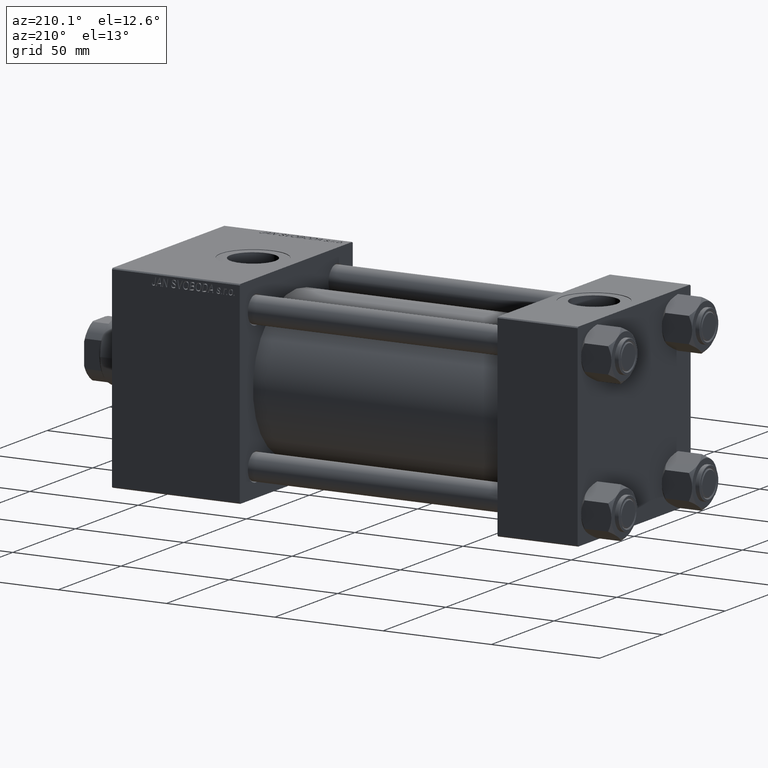
[diagram: clean part render]
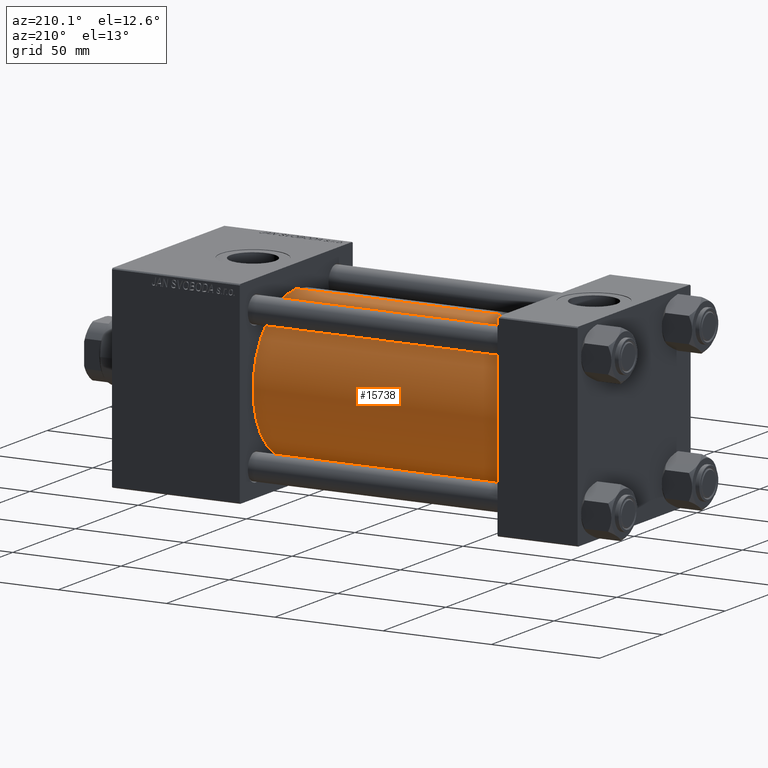
[diagram: same view with one face highlighted and labeled with its STEP entity id]
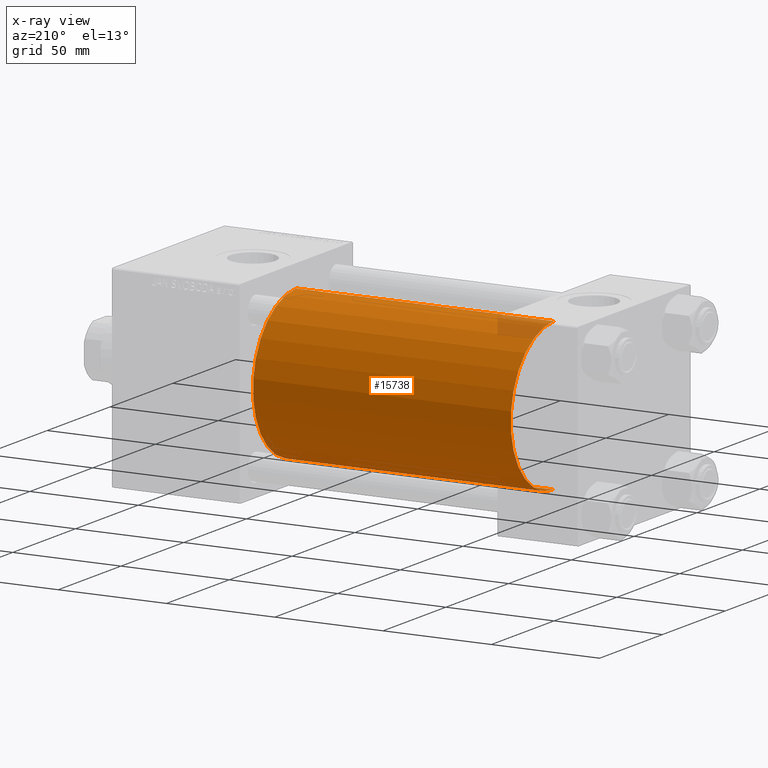
[diagram: x-ray of the same camera — body ghosted, the highlighted face saturated]
A machine part, auxiliary view. The second image highlights one B-rep face of the part: STEP entity #15738.
The next image is the same camera in x-ray: the body ghosted, the highlighted face saturated — about 2% of this face is hidden behind the body in this view.
In plain terms, the highlighted cylindrical surface (partial cylindrical patch) has radius 34.5 mm, axis along (-1, -0, -0).
Its self-contained STEP definition (entity closure, byte-faithful):
#2303 = EDGE_LOOP ( 'NONE', ( #36486, #24062, #43866, #20186 ) ) ;
#5890 = DIRECTION ( 'NONE',  ( 0.000000000000000000, 0.000000000000000000, 1.000000000000000000 ) ) ;
#7321 = CARTESIAN_POINT ( 'NONE',  ( 156.0000000000000000, -2.602085213965210642E-15, 0.000000000000000000 ) ) ;
#7871 = VERTEX_POINT ( 'NONE', #45200 ) ;
#10777 = CIRCLE ( 'NONE', #42499, 34.50000000000000000 ) ;
#13054 = CARTESIAN_POINT ( 'NONE',  ( 156.0000000000000000, -2.602085213965210642E-15, 34.50000000000000000 ) ) ;
#15738 = ADVANCED_FACE ( 'NONE', ( #37436 ), #48449, .T. ) ;
#20186 = ORIENTED_EDGE ( 'NONE', *, *, #27092, .F. ) ;
#20405 = AXIS2_PLACEMENT_3D ( 'NONE', #27048, #22972, #33921 ) ;
#20577 = VECTOR ( 'NONE', #41523, 1000.000000000000000 ) ;
#21975 = CARTESIAN_POINT ( 'NONE',  ( 37.00000000000000711, 1.622946243093158675E-15, -34.50000000000000000 ) ) ;
#22833 = DIRECTION ( 'NONE',  ( 1.000000000000000000, 0.000000000000000000, 0.000000000000000000 ) ) ;
#22972 = DIRECTION ( 'NONE',  ( 1.000000000000000000, -0.000000000000000000, 0.000000000000000000 ) ) ;
#24062 = ORIENTED_EDGE ( 'NONE', *, *, #41487, .T. ) ;
#24370 = VERTEX_POINT ( 'NONE', #24822 ) ;
#24822 = CARTESIAN_POINT ( 'NONE',  ( 37.00000000000000711, -2.602085213965210642E-15, 34.50000000000000000 ) ) ;
#25217 = CARTESIAN_POINT ( 'NONE',  ( 156.0000000000000000, -2.602085213965210642E-15, 0.000000000000000000 ) ) ;
#26057 = CIRCLE ( 'NONE', #20405, 34.50000000000000000 ) ;
#26077 = VECTOR ( 'NONE', #44038, 1000.000000000000000 ) ;
#27048 = CARTESIAN_POINT ( 'NONE',  ( 37.00000000000000711, -2.602085213965210642E-15, 0.000000000000000000 ) ) ;
#27092 = EDGE_CURVE ( 'NONE', #50411, #24370, #28483, .T. ) ;
#28483 = LINE ( 'NONE', #44808, #26077 ) ;
#30250 = EDGE_CURVE ( 'NONE', #7871, #50411, #10777, .T. ) ;
#32755 = VERTEX_POINT ( 'NONE', #21975 ) ;
#32798 = EDGE_CURVE ( 'NONE', #32755, #24370, #26057, .T. ) ;
#33921 = DIRECTION ( 'NONE',  ( 0.000000000000000000, 0.000000000000000000, 1.000000000000000000 ) ) ;
#36486 = ORIENTED_EDGE ( 'NONE', *, *, #30250, .F. ) ;
#37436 = FACE_OUTER_BOUND ( 'NONE', #2303, .T. ) ;
#38439 = LINE ( 'NONE', #42279, #20577 ) ;
#39876 = DIRECTION ( 'NONE',  ( 0.000000000000000000, 0.000000000000000000, -1.000000000000000000 ) ) ;
#40765 = DIRECTION ( 'NONE',  ( -1.000000000000000000, -0.000000000000000000, -0.000000000000000000 ) ) ;
#41487 = EDGE_CURVE ( 'NONE', #7871, #32755, #38439, .T. ) ;
#41523 = DIRECTION ( 'NONE',  ( -1.000000000000000000, -0.000000000000000000, -0.000000000000000000 ) ) ;
#42279 = CARTESIAN_POINT ( 'NONE',  ( 156.0000000000000000, 1.622946243093158675E-15, -34.50000000000000000 ) ) ;
#42499 = AXIS2_PLACEMENT_3D ( 'NONE', #7321, #22833, #39876 ) ;
#43866 = ORIENTED_EDGE ( 'NONE', *, *, #32798, .T. ) ;
#44038 = DIRECTION ( 'NONE',  ( -1.000000000000000000, -0.000000000000000000, -0.000000000000000000 ) ) ;
#44808 = CARTESIAN_POINT ( 'NONE',  ( 156.0000000000000000, -2.602085213965210642E-15, 34.50000000000000000 ) ) ;
#45200 = CARTESIAN_POINT ( 'NONE',  ( 156.0000000000000000, 1.622946243093158675E-15, -34.50000000000000000 ) ) ;
#48449 = CYLINDRICAL_SURFACE ( 'NONE', #50313, 34.50000000000000000 ) ;
#50313 = AXIS2_PLACEMENT_3D ( 'NONE', #25217, #40765, #5890 ) ;
#50411 = VERTEX_POINT ( 'NONE', #13054 ) ;